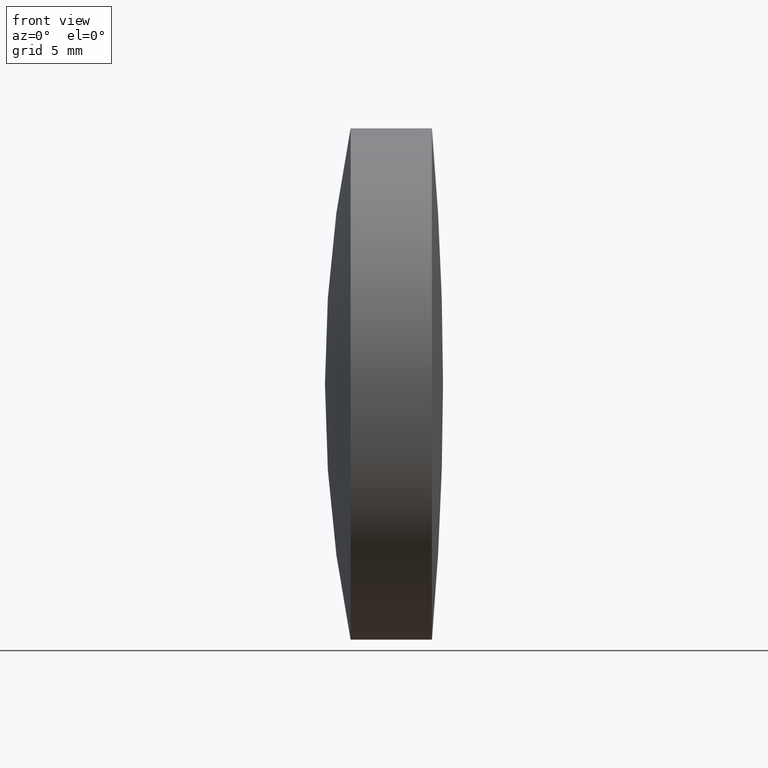
[diagram: clean part render]
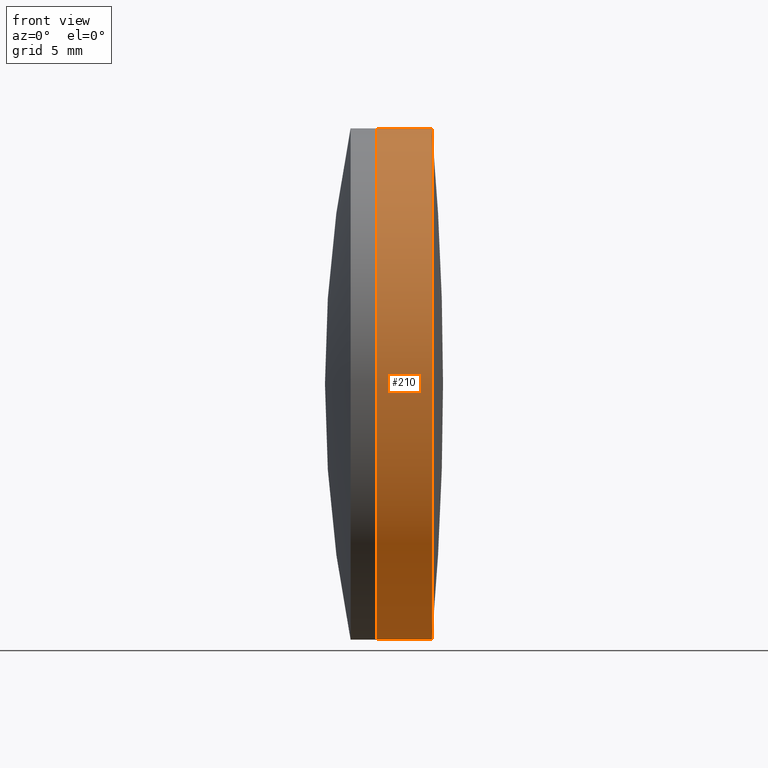
[diagram: same view with one face highlighted and labeled with its STEP entity id]
A machine part, front view. The second image highlights one B-rep face of the part: STEP entity #210.
In plain terms, the highlighted cylindrical surface (partial cylindrical patch) has radius 20 mm, axis along (-1, -0, -0).
Its self-contained STEP definition (entity closure, byte-faithful):
#3 = ORIENTED_EDGE ( 'NONE', *, *, #109, .F. ) ;
#9 = ORIENTED_EDGE ( 'NONE', *, *, #339, .T. ) ;
#10 = CIRCLE ( 'NONE', #272, 19.99999999999998900 ) ;
#13 = LINE ( 'NONE', #39, #203 ) ;
#39 = CARTESIAN_POINT ( 'NONE',  ( -0.5519199926577972300, 2.449293598294708100E-015, -20.00000000000001100 ) ) ;
#46 = DIRECTION ( 'NONE',  ( 0.0000000000000000000, 0.0000000000000000000, 1.000000000000000000 ) ) ;
#63 = EDGE_CURVE ( 'NONE', #69, #242, #13, .T. ) ;
#65 = DIRECTION ( 'NONE',  ( -1.000000000000000000, -0.0000000000000000000, -0.0000000000000000000 ) ) ;
#67 = VECTOR ( 'NONE', #321, 1000.000000000000000 ) ;
#68 = LINE ( 'NONE', #159, #67 ) ;
#69 = VERTEX_POINT ( 'NONE', #175 ) ;
#75 = CARTESIAN_POINT ( 'NONE',  ( 287.2444201635094600, 0.0000000000000000000, 0.0000000000000000000 ) ) ;
#89 = DIRECTION ( 'NONE',  ( -1.000000000000000000, -0.0000000000000000000, -0.0000000000000000000 ) ) ;
#94 = VERTEX_POINT ( 'NONE', #128 ) ;
#101 = CYLINDRICAL_SURFACE ( 'NONE', #240, 20.00000000000001100 ) ;
#109 = EDGE_CURVE ( 'NONE', #242, #94, #277, .T. ) ;
#123 = ORIENTED_EDGE ( 'NONE', *, *, #63, .F. ) ;
#128 = CARTESIAN_POINT ( 'NONE',  ( 282.9165680011502700, 0.0000000000000000000, 20.00000000000003200 ) ) ;
#142 = CARTESIAN_POINT ( 'NONE',  ( 282.9165680011502700, 2.449293598294710100E-015, -20.00000000000002500 ) ) ;
#146 = DIRECTION ( 'NONE',  ( 0.0000000000000000000, 0.0000000000000000000, 1.000000000000000000 ) ) ;
#159 = CARTESIAN_POINT ( 'NONE',  ( -0.5519199926577972300, 0.0000000000000000000, 20.00000000000001100 ) ) ;
#169 = CARTESIAN_POINT ( 'NONE',  ( -0.5519199926577972300, 0.0000000000000000000, 0.0000000000000000000 ) ) ;
#172 = CARTESIAN_POINT ( 'NONE',  ( 282.9165680011502700, 0.0000000000000000000, 0.0000000000000000000 ) ) ;
#175 = CARTESIAN_POINT ( 'NONE',  ( 287.2444201635094600, 2.449293598294706500E-015, -19.99999999999998900 ) ) ;
#190 = AXIS2_PLACEMENT_3D ( 'NONE', #172, #330, #146 ) ;
#196 = CARTESIAN_POINT ( 'NONE',  ( 287.2444201635094600, 0.0000000000000000000, 19.99999999999998900 ) ) ;
#203 = VECTOR ( 'NONE', #65, 1000.000000000000000 ) ;
#204 = ORIENTED_EDGE ( 'NONE', *, *, #324, .T. ) ;
#210 = ADVANCED_FACE ( 'NONE', ( #303 ), #101, .T. ) ;
#218 = EDGE_LOOP ( 'NONE', ( #123, #9, #204, #3 ) ) ;
#240 = AXIS2_PLACEMENT_3D ( 'NONE', #169, #89, #327 ) ;
#241 = VERTEX_POINT ( 'NONE', #196 ) ;
#242 = VERTEX_POINT ( 'NONE', #142 ) ;
#245 = DIRECTION ( 'NONE',  ( -1.000000000000000000, -0.0000000000000000000, -0.0000000000000000000 ) ) ;
#272 = AXIS2_PLACEMENT_3D ( 'NONE', #75, #245, #46 ) ;
#277 = CIRCLE ( 'NONE', #190, 20.00000000000003200 ) ;
#303 = FACE_OUTER_BOUND ( 'NONE', #218, .T. ) ;
#321 = DIRECTION ( 'NONE',  ( -1.000000000000000000, -0.0000000000000000000, -0.0000000000000000000 ) ) ;
#324 = EDGE_CURVE ( 'NONE', #241, #94, #68, .T. ) ;
#327 = DIRECTION ( 'NONE',  ( 0.0000000000000000000, 0.0000000000000000000, 1.000000000000000000 ) ) ;
#330 = DIRECTION ( 'NONE',  ( -1.000000000000000000, -0.0000000000000000000, -0.0000000000000000000 ) ) ;
#339 = EDGE_CURVE ( 'NONE', #69, #241, #10, .T. ) ;